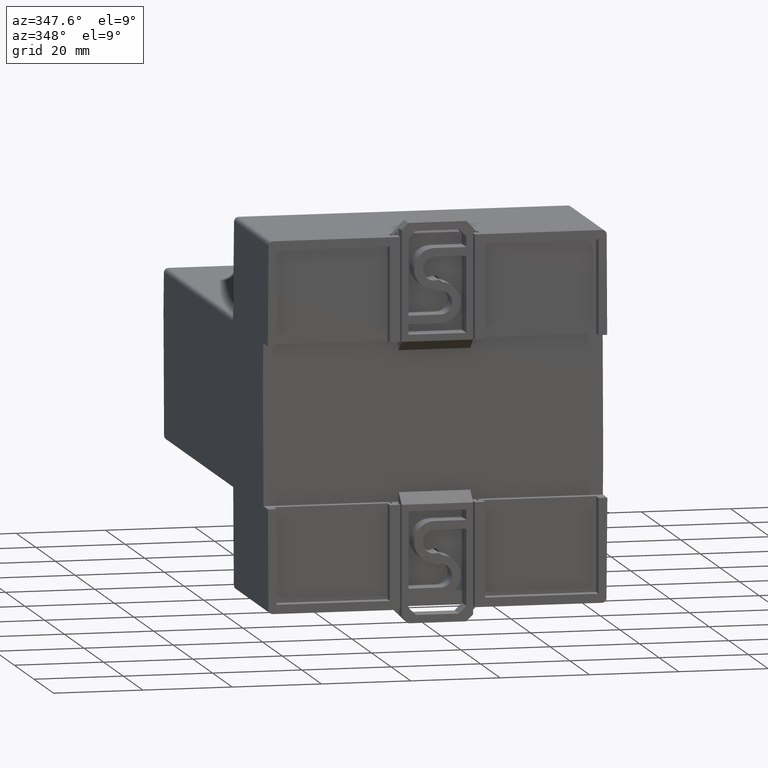
[diagram: clean part render]
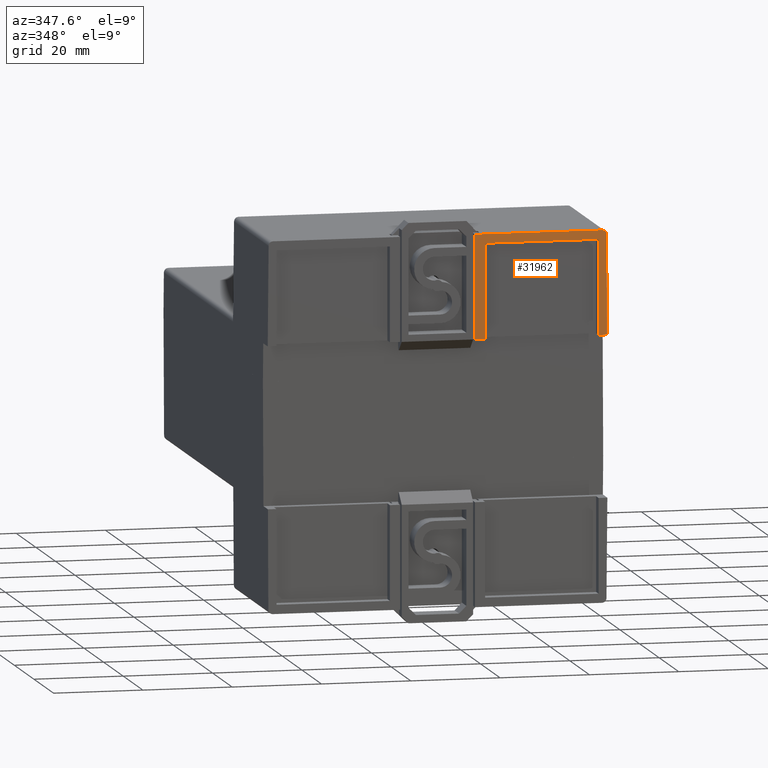
[diagram: same view with one face highlighted and labeled with its STEP entity id]
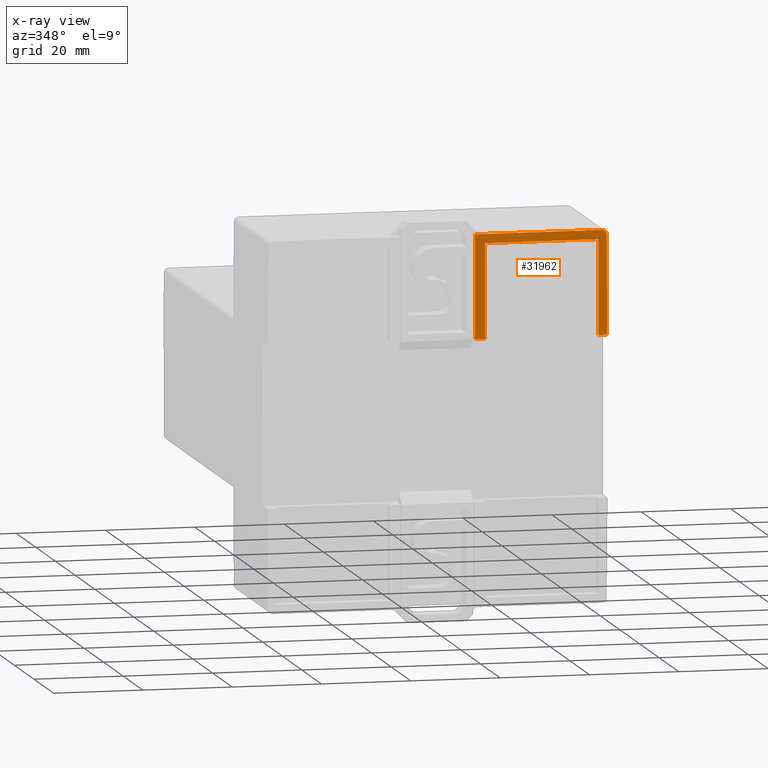
[diagram: x-ray of the same camera — body ghosted, the highlighted face saturated]
A machine part, auxiliary view. The second image highlights one B-rep face of the part: STEP entity #31962.
The next image is the same camera in x-ray: the body ghosted, the highlighted face saturated — about 0% of this face is hidden behind the body in this view.
In plain terms, the highlighted planar face has unit normal (0, -1, 0).
Its self-contained STEP definition (entity closure, byte-faithful):
#622 = LINE ( 'NONE', #11651, #6535 ) ;
#1780 = CARTESIAN_POINT ( 'NONE',  ( 0.3313306931888153617, -2.996293787826625810, 0.8750000000000001110 ) ) ;
#2390 = DIRECTION ( 'NONE',  ( 0.000000000000000000, 0.000000000000000000, -1.000000000000000000 ) ) ;
#2670 = CARTESIAN_POINT ( 'NONE',  ( 1.453405323535685190, -2.996293787826625810, 0.8749999999999902300 ) ) ;
#3194 = LINE ( 'NONE', #20239, #13774 ) ;
#3275 = CARTESIAN_POINT ( 'NONE',  ( 1.421330692758247860, -2.996293787826625810, 0.7949999999933228256 ) ) ;
#3449 = EDGE_CURVE ( 'NONE', #6292, #31903, #5441, .T. ) ;
#3485 = ORIENTED_EDGE ( 'NONE', *, *, #3449, .T. ) ;
#4587 = DIRECTION ( 'NONE',  ( 1.000000000000000000, 0.000000000000000000, -7.000000000000000938E-15 ) ) ;
#4874 = CARTESIAN_POINT ( 'NONE',  ( 1.492775027347147621, -2.996293787826625810, 0.8358017038725689130 ) ) ;
#5441 = LINE ( 'NONE', #29773, #34350 ) ;
#5613 = DIRECTION ( 'NONE',  ( -7.000000000000000938E-15, 0.000000000000000000, -1.000000000000000000 ) ) ;
#6292 = VERTEX_POINT ( 'NONE', #1780 ) ;
#6392 = EDGE_CURVE ( 'NONE', #12023, #22256, #3194, .T. ) ;
#6515 = ORIENTED_EDGE ( 'NONE', *, *, #31564, .T. ) ;
#6535 = VECTOR ( 'NONE', #14827, 39.37007874015748143 ) ;
#7010 = VERTEX_POINT ( 'NONE', #32072 ) ;
#8299 = ORIENTED_EDGE ( 'NONE', *, *, #33417, .F. ) ;
#8396 = DIRECTION ( 'NONE',  ( -7.000000000000000938E-15, 0.000000000000000000, -1.000000000000000000 ) ) ;
#8617 = EDGE_CURVE ( 'NONE', #15043, #7010, #15871, .T. ) ;
#9304 = EDGE_LOOP ( 'NONE', ( #18825, #3485, #35096, #16660, #27499, #19818, #6515, #8299, #33637 ) ) ;
#9457 = VECTOR ( 'NONE', #35025, 39.37007874015748143 ) ;
#10290 = CARTESIAN_POINT ( 'NONE',  ( 1.497027193035681103, -2.996293787826625810, -0.1387167430000149637 ) ) ;
#10624 = LINE ( 'NONE', #21444, #31526 ) ;
#11169 = CIRCLE ( 'NONE', #30553, 0.03937007899999996757 ) ;
#11259 = EDGE_CURVE ( 'NONE', #27010, #6292, #15835, .T. ) ;
#11651 = CARTESIAN_POINT ( 'NONE',  ( 0.9174593720356850612, -2.996293787826625810, 0.7949999999899940439 ) ) ;
#12023 = VERTEX_POINT ( 'NONE', #15134 ) ;
#13774 = VECTOR ( 'NONE', #17405, 39.37007874015748143 ) ;
#13855 = VECTOR ( 'NONE', #8396, 39.37007874015748143 ) ;
#14763 = LINE ( 'NONE', #27902, #24301 ) ;
#14827 = DIRECTION ( 'NONE',  ( 1.000000000000000000, 0.000000000000000000, -7.000000000000000938E-15 ) ) ;
#15043 = VERTEX_POINT ( 'NONE', #3275 ) ;
#15134 = CARTESIAN_POINT ( 'NONE',  ( 0.4213306926938503727, -2.996293787826625810, -0.04000000000000693279 ) ) ;
#15381 = VERTEX_POINT ( 'NONE', #24362 ) ;
#15835 = LINE ( 'NONE', #26815, #9457 ) ;
#15871 = LINE ( 'NONE', #32739, #13855 ) ;
#15895 = CARTESIAN_POINT ( 'NONE',  ( 1.503588051535681203, -2.996293787826625810, -0.04000000000001487782 ) ) ;
#16617 = EDGE_CURVE ( 'NONE', #33554, #27010, #11169, .T. ) ;
#16660 = ORIENTED_EDGE ( 'NONE', *, *, #6392, .T. ) ;
#17405 = DIRECTION ( 'NONE',  ( 7.000000000000000938E-15, 0.000000000000000000, 1.000000000000000000 ) ) ;
#18825 = ORIENTED_EDGE ( 'NONE', *, *, #11259, .T. ) ;
#19818 = ORIENTED_EDGE ( 'NONE', *, *, #8617, .T. ) ;
#20239 = CARTESIAN_POINT ( 'NONE',  ( 0.4213306926600394187, -2.996293787826625810, 0.4174999999999929323 ) ) ;
#20767 = EDGE_CURVE ( 'NONE', #31903, #12023, #14763, .T. ) ;
#20954 = LINE ( 'NONE', #10290, #25718 ) ;
#20973 = CARTESIAN_POINT ( 'NONE',  ( 1.453405323535685190, -2.996293787826625810, 0.8356299209999862310 ) ) ;
#21204 = PLANE ( 'NONE',  #32087 ) ;
#21444 = CARTESIAN_POINT ( 'NONE',  ( 0.9139635750356811528, -2.996293787826625810, -0.04000000000001079081 ) ) ;
#22256 = VERTEX_POINT ( 'NONE', #29817 ) ;
#24043 = CARTESIAN_POINT ( 'NONE',  ( 0.3313306925356815369, -2.996293787826625810, -0.04000000000000693279 ) ) ;
#24301 = VECTOR ( 'NONE', #4587, 39.37007874015748143 ) ;
#24362 = CARTESIAN_POINT ( 'NONE',  ( 1.496596457292783455, -2.996293787826625810, -0.04000000047576291601 ) ) ;
#24559 = FACE_OUTER_BOUND ( 'NONE', #9304, .T. ) ;
#25718 = VECTOR ( 'NONE', #31946, 39.37007874015748854 ) ;
#26482 = EDGE_CURVE ( 'NONE', #22256, #15043, #622, .T. ) ;
#26722 = DIRECTION ( 'NONE',  ( 0.000000000000000000, -1.000000000000000000, 0.000000000000000000 ) ) ;
#26815 = CARTESIAN_POINT ( 'NONE',  ( 0.002336300535685559201, -2.996293787826625810, 0.8750000000000001110 ) ) ;
#27010 = VERTEX_POINT ( 'NONE', #2670 ) ;
#27274 = DIRECTION ( 'NONE',  ( 1.000000000000000000, 0.000000000000000000, -7.000000000000000938E-15 ) ) ;
#27499 = ORIENTED_EDGE ( 'NONE', *, *, #26482, .T. ) ;
#27902 = CARTESIAN_POINT ( 'NONE',  ( 0.9139635750356811528, -2.996293787826625810, -0.04000000000001079081 ) ) ;
#29338 = DIRECTION ( 'NONE',  ( 6.938893858110534881E-15, 0.000000000000000000, 1.000000000000000000 ) ) ;
#29773 = CARTESIAN_POINT ( 'NONE',  ( 0.3313306925356854227, -2.996293787826625810, 0.4174999999999999822 ) ) ;
#29817 = CARTESIAN_POINT ( 'NONE',  ( 0.4213306926185905743, -2.996293787826625810, 0.7949999999933268224 ) ) ;
#30553 = AXIS2_PLACEMENT_3D ( 'NONE', #20973, #31800, #29338 ) ;
#31526 = VECTOR ( 'NONE', #27274, 39.37007874015748143 ) ;
#31564 = EDGE_CURVE ( 'NONE', #7010, #15381, #10624, .T. ) ;
#31800 = DIRECTION ( 'NONE',  ( 0.000000000000000000, -1.000000000000000000, 0.000000000000000000 ) ) ;
#31903 = VERTEX_POINT ( 'NONE', #24043 ) ;
#31946 = DIRECTION ( 'NONE',  ( 0.004363308920883450862, 0.000000000000000000, -0.9999904807223221059 ) ) ;
#31962 = ADVANCED_FACE ( 'NONE', ( #24559 ), #21204, .T. ) ;
#32072 = CARTESIAN_POINT ( 'NONE',  ( 1.421330692696129772, -2.996293787826625810, -0.04000000000001079081 ) ) ;
#32087 = AXIS2_PLACEMENT_3D ( 'NONE', #15895, #26722, #2390 ) ;
#32739 = CARTESIAN_POINT ( 'NONE',  ( 1.421330692869531509, -2.996293787826625810, 0.4174999999999889910 ) ) ;
#33417 = EDGE_CURVE ( 'NONE', #33554, #15381, #20954, .T. ) ;
#33554 = VERTEX_POINT ( 'NONE', #4874 ) ;
#33637 = ORIENTED_EDGE ( 'NONE', *, *, #16617, .T. ) ;
#34350 = VECTOR ( 'NONE', #5613, 39.37007874015748143 ) ;
#35025 = DIRECTION ( 'NONE',  ( -1.000000000000000000, 0.000000000000000000, 7.000000000000000938E-15 ) ) ;
#35096 = ORIENTED_EDGE ( 'NONE', *, *, #20767, .T. ) ;